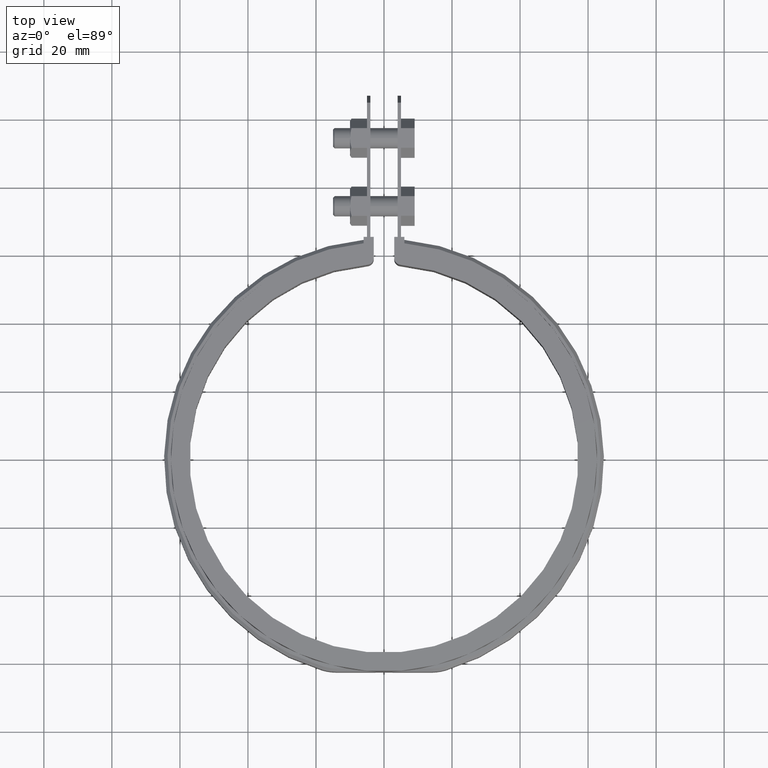
[diagram: clean part render]
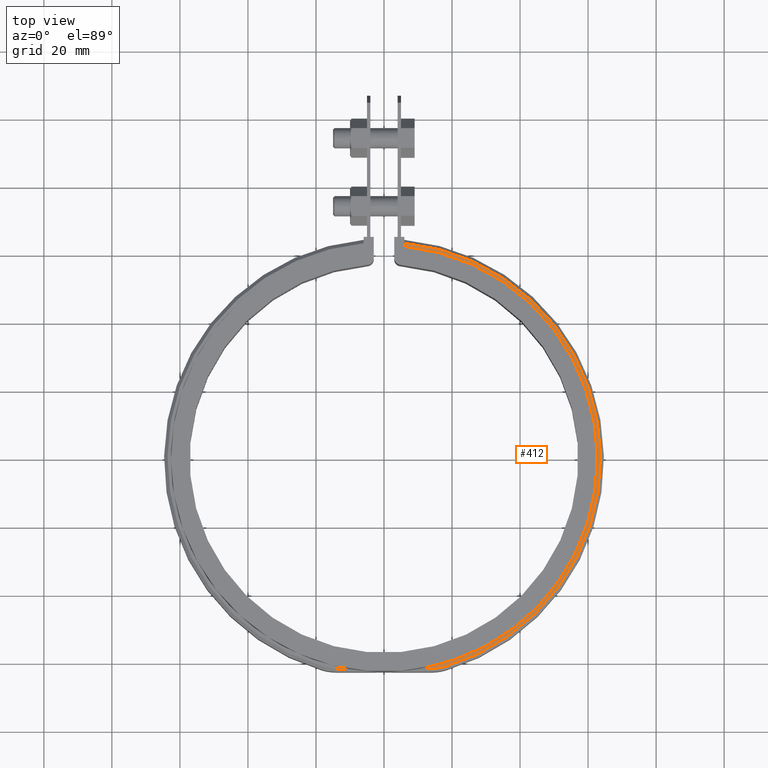
[diagram: same view with one face highlighted and labeled with its STEP entity id]
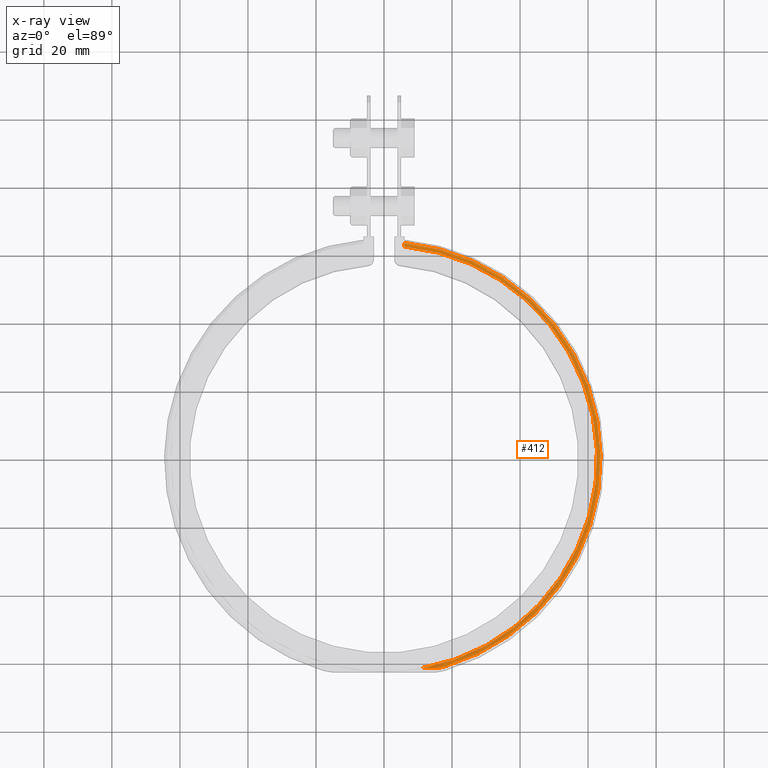
[diagram: x-ray of the same camera — body ghosted, the highlighted face saturated]
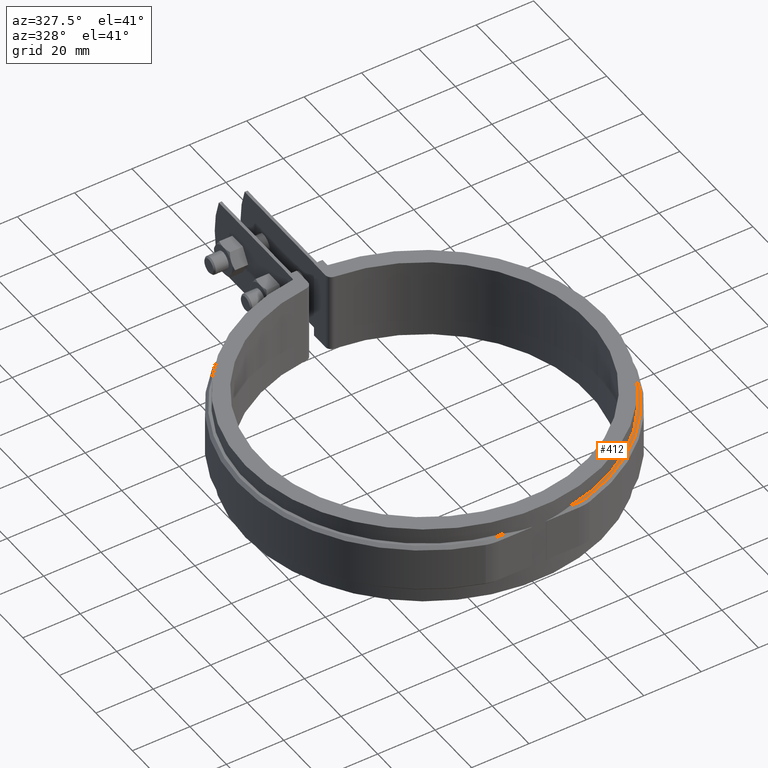
[diagram: same view with one face highlighted and labeled with its STEP entity id]
A machine part, top view. The second image highlights one B-rep face of the part: STEP entity #412.
The next image is the same camera in x-ray: the body ghosted, the highlighted face saturated — about 0% of this face is hidden behind the body in this view.
A second angle (auxiliary view) of the same face is appended — the face is thin or edge-on in the first view.
In plain terms, the highlighted planar face has unit normal (0, 0, 1).
Its self-contained STEP definition (entity closure, byte-faithful):
#412 = ADVANCED_FACE( '', ( #716 ), #717, .T. );
#716 = FACE_OUTER_BOUND( '', #1568, .T. );
#717 = PLANE( '', #1569 );
#1568 = EDGE_LOOP( '', ( #3170, #3171, #3172, #3173, #3174 ) );
#1569 = AXIS2_PLACEMENT_3D( '', #3175, #3176, #3177 );
#3170 = ORIENTED_EDGE( '', *, *, #4059, .T. );
#3171 = ORIENTED_EDGE( '', *, *, #4154, .T. );
#3172 = ORIENTED_EDGE( '', *, *, #4155, .T. );
#3173 = ORIENTED_EDGE( '', *, *, #4156, .T. );
#3174 = ORIENTED_EDGE( '', *, *, #4097, .T. );
#3175 = CARTESIAN_POINT( '', ( 0.000000000000000, 1.38777878078145E-014, 8.50000000000000 ) );
#3176 = DIRECTION( '', ( 0.000000000000000, 0.000000000000000, 1.00000000000000 ) );
#3177 = DIRECTION( '', ( 0.0773395204949729, 0.997004813714361, 0.000000000000000 ) );
#4059 = EDGE_CURVE( '', #4702, #4700, #4703, .F. );
#4097 = EDGE_CURVE( '', #4769, #4702, #4770, .T. );
#4154 = EDGE_CURVE( '', #4700, #4857, #4858, .T. );
#4155 = EDGE_CURVE( '', #4857, #4859, #4860, .T. );
#4156 = EDGE_CURVE( '', #4859, #4769, #4861, .T. );
#4700 = VERTEX_POINT( '', #7109 );
#4702 = VERTEX_POINT( '', #7111 );
#4703 = CIRCLE( '', #7112, 62.6500000000000 );
#4769 = VERTEX_POINT( '', #7409 );
#4770 = LINE( '', #7410, #7411 );
#4857 = VERTEX_POINT( '', #7547 );
#4858 = LINE( '', #7548, #7549 );
#4859 = VERTEX_POINT( '', #7550 );
#4860 = CIRCLE( '', #7551, 14.0000000000000 );
#4861 = CIRCLE( '', #7552, 63.6500000000000 );
#7109 = CARTESIAN_POINT( '', ( 11.1489909857347, -61.6500000000000, 8.50000000000001 ) );
#7111 = CARTESIAN_POINT( '', ( 6.00000000000001, 62.3620277091757, 8.50000000000000 ) );
#7112 = AXIS2_PLACEMENT_3D( '', #8299, #8300, #8301 );
#7409 = CARTESIAN_POINT( '', ( 6.00000000000001, 63.3665724179555, 8.50000000000000 ) );
#7410 = CARTESIAN_POINT( '', ( 6.00000000000001, 62.3620277091758, 8.50000000000000 ) );
#7411 = VECTOR( '', #8343, 1000.00000000000 );
#7547 = CARTESIAN_POINT( '', ( 13.9499103939774, -61.6500000000000, 8.50000000000000 ) );
#7548 = CARTESIAN_POINT( '', ( -8.55565618351761E-016, -61.6500000000000, 8.50000000000000 ) );
#7549 = VECTOR( '', #8433, 1000.00000000000 );
#7550 = CARTESIAN_POINT( '', ( 17.8834198706277, -61.0860523665659, 8.50000000000000 ) );
#7551 = AXIS2_PLACEMENT_3D( '', #8434, #8435, #8436 );
#7552 = AXIS2_PLACEMENT_3D( '', #8437, #8438, #8439 );
#8299 = CARTESIAN_POINT( '', ( 6.93889390390723E-015, 5.55111512312578E-014, 8.50000000000001 ) );
#8300 = DIRECTION( '', ( 0.000000000000000, 0.000000000000000, 1.00000000000000 ) );
#8301 = DIRECTION( '', ( 1.00000000000000, 0.000000000000000, 0.000000000000000 ) );
#8343 = DIRECTION( '', ( -5.55111512312578E-017, -1.00000000000000, 0.000000000000000 ) );
#8433 = DIRECTION( '', ( 1.00000000000000, -1.38777878078145E-017, 0.000000000000000 ) );
#8434 = CARTESIAN_POINT( '', ( 13.9499103939774, -47.6500000000000, 8.50000000000000 ) );
#8435 = DIRECTION( '', ( 0.000000000000000, 0.000000000000000, 1.00000000000000 ) );
#8436 = DIRECTION( '', ( 1.00000000000000, 0.000000000000000, 0.000000000000000 ) );
#8437 = CARTESIAN_POINT( '', ( 0.000000000000000, 1.38777878078145E-014, 8.50000000000000 ) );
#8438 = DIRECTION( '', ( 0.000000000000000, 0.000000000000000, 1.00000000000000 ) );
#8439 = DIRECTION( '', ( 1.00000000000000, 0.000000000000000, 0.000000000000000 ) );